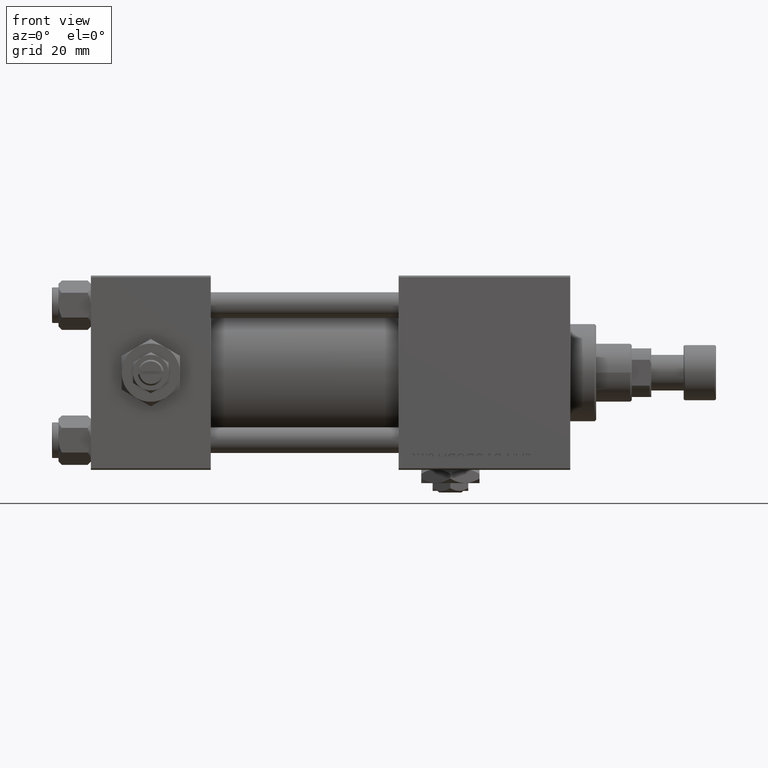
[diagram: clean part render]
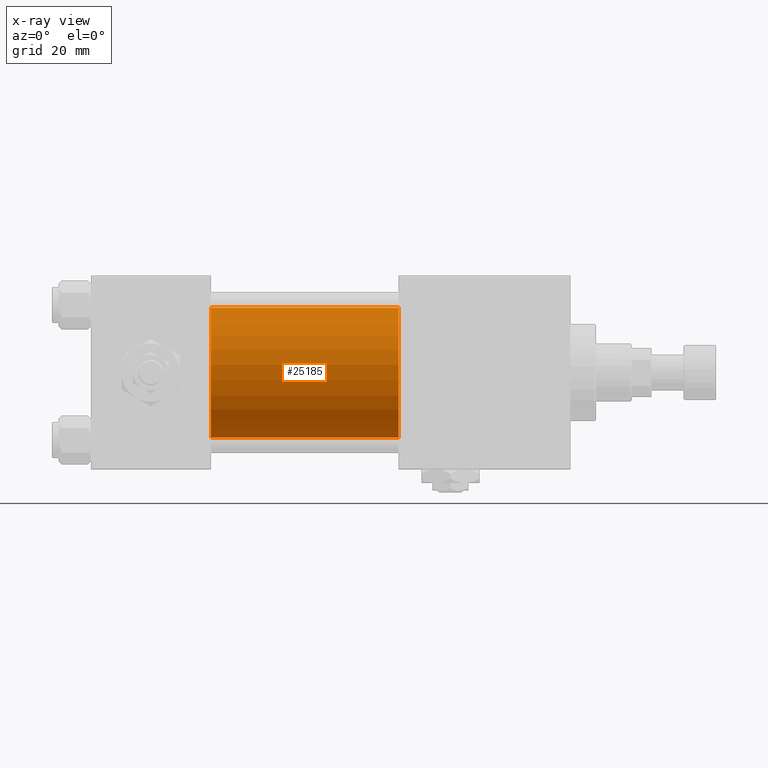
[diagram: x-ray — body ghosted, one internal face saturated and labeled with its STEP entity id]
A machine part, front view, then the same camera in x-ray: the body is ghosted and one INTERNAL B-rep face — a face not visible from any outside direction — is saturated and labeled: STEP entity #25185.
In plain terms, the highlighted cylindrical surface (partial cylindrical patch) has radius 20 mm, axis along (-1, -0, -0).
Its self-contained STEP definition (entity closure, byte-faithful):
#857 = EDGE_CURVE ( 'NONE', #36794, #46829, #28022, .T. ) ;
#3227 = VERTEX_POINT ( 'NONE', #30100 ) ;
#4700 = CIRCLE ( 'NONE', #12379, 20.00000000000000000 ) ;
#7330 = ORIENTED_EDGE ( 'NONE', *, *, #22910, .F. ) ;
#9340 = DIRECTION ( 'NONE',  ( 1.000000000000000000, 0.000000000000000000, 0.000000000000000000 ) ) ;
#10750 = CYLINDRICAL_SURFACE ( 'NONE', #44900, 20.00000000000000000 ) ;
#11517 = CARTESIAN_POINT ( 'NONE',  ( 95.00000000000000000, -1.527916156705046464E-16, -20.00000000000000000 ) ) ;
#11610 = DIRECTION ( 'NONE',  ( 1.000000000000000000, 0.000000000000000000, 0.000000000000000000 ) ) ;
#12379 = AXIS2_PLACEMENT_3D ( 'NONE', #36343, #11610, #32353 ) ;
#12544 = ORIENTED_EDGE ( 'NONE', *, *, #18355, .F. ) ;
#13056 = DIRECTION ( 'NONE',  ( 0.000000000000000000, 0.000000000000000000, -1.000000000000000000 ) ) ;
#13247 = ORIENTED_EDGE ( 'NONE', *, *, #17432, .T. ) ;
#13425 = VERTEX_POINT ( 'NONE', #47955 ) ;
#13616 = CARTESIAN_POINT ( 'NONE',  ( 37.00000000000000000, -1.527916156705046464E-16, -20.00000000000000000 ) ) ;
#14066 = CIRCLE ( 'NONE', #24363, 20.00000000000000000 ) ;
#15774 = DIRECTION ( 'NONE',  ( -1.000000000000000000, -0.000000000000000000, -0.000000000000000000 ) ) ;
#16735 = CARTESIAN_POINT ( 'NONE',  ( 95.00000000000000000, -2.602085213965210642E-15, 20.00000000000000000 ) ) ;
#17258 = LINE ( 'NONE', #16735, #36321 ) ;
#17432 = EDGE_CURVE ( 'NONE', #3227, #36794, #14066, .T. ) ;
#17936 = FACE_OUTER_BOUND ( 'NONE', #51595, .T. ) ;
#18355 = EDGE_CURVE ( 'NONE', #13425, #46829, #4700, .T. ) ;
#19058 = VECTOR ( 'NONE', #15774, 1000.000000000000000 ) ;
#21547 = CARTESIAN_POINT ( 'NONE',  ( 95.00000000000000000, -1.527916156705046464E-16, -20.00000000000000000 ) ) ;
#22910 = EDGE_CURVE ( 'NONE', #3227, #13425, #17258, .T. ) ;
#24363 = AXIS2_PLACEMENT_3D ( 'NONE', #45526, #9340, #13056 ) ;
#25185 = ADVANCED_FACE ( 'NONE', ( #17936 ), #10750, .F. ) ;
#28022 = LINE ( 'NONE', #11517, #19058 ) ;
#28198 = ORIENTED_EDGE ( 'NONE', *, *, #857, .T. ) ;
#30100 = CARTESIAN_POINT ( 'NONE',  ( 95.00000000000000000, -2.602085213965210642E-15, 20.00000000000000000 ) ) ;
#32353 = DIRECTION ( 'NONE',  ( 0.000000000000000000, 0.000000000000000000, -1.000000000000000000 ) ) ;
#34165 = DIRECTION ( 'NONE',  ( -1.000000000000000000, -0.000000000000000000, -0.000000000000000000 ) ) ;
#36321 = VECTOR ( 'NONE', #41198, 1000.000000000000000 ) ;
#36343 = CARTESIAN_POINT ( 'NONE',  ( 37.00000000000000000, -2.602085213965210642E-15, 0.000000000000000000 ) ) ;
#36794 = VERTEX_POINT ( 'NONE', #21547 ) ;
#38160 = DIRECTION ( 'NONE',  ( 0.000000000000000000, 0.000000000000000000, 1.000000000000000000 ) ) ;
#41198 = DIRECTION ( 'NONE',  ( -1.000000000000000000, -0.000000000000000000, -0.000000000000000000 ) ) ;
#44900 = AXIS2_PLACEMENT_3D ( 'NONE', #46128, #34165, #38160 ) ;
#45526 = CARTESIAN_POINT ( 'NONE',  ( 95.00000000000000000, -2.602085213965210642E-15, 0.000000000000000000 ) ) ;
#46128 = CARTESIAN_POINT ( 'NONE',  ( 95.00000000000000000, -2.602085213965210642E-15, 0.000000000000000000 ) ) ;
#46829 = VERTEX_POINT ( 'NONE', #13616 ) ;
#47955 = CARTESIAN_POINT ( 'NONE',  ( 37.00000000000000000, -2.602085213965210642E-15, 20.00000000000000000 ) ) ;
#51595 = EDGE_LOOP ( 'NONE', ( #13247, #28198, #12544, #7330 ) ) ;